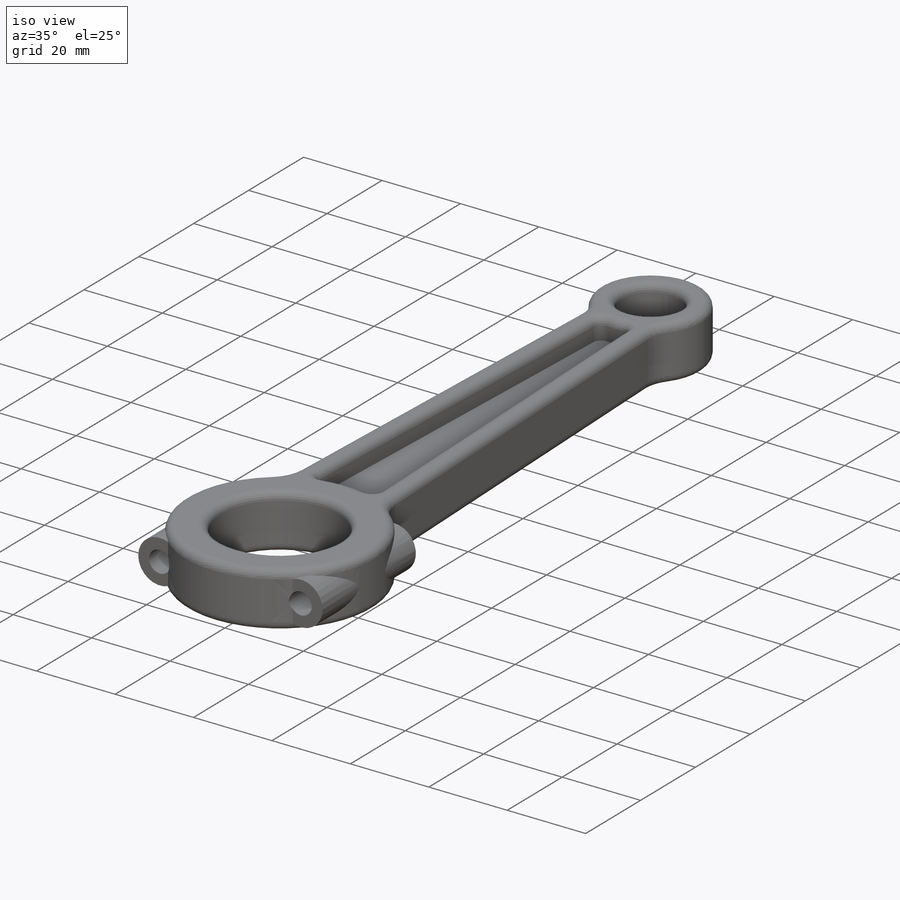
[diagram: iso view]
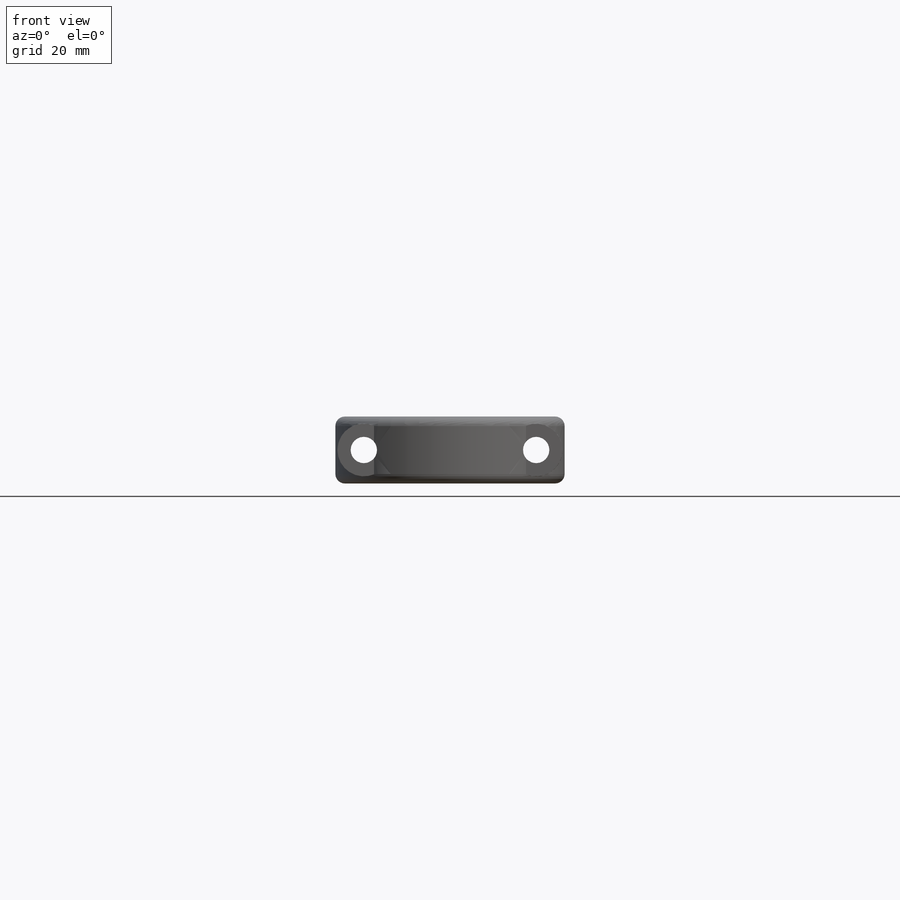
[diagram: front view]
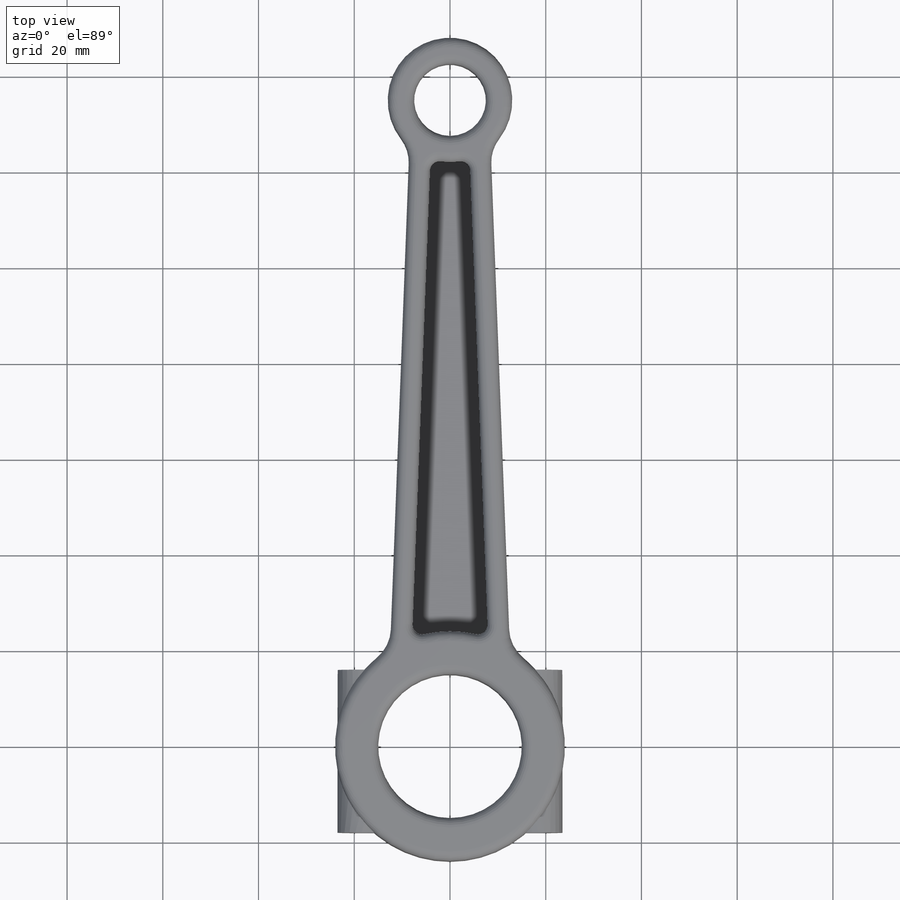
[diagram: top view]
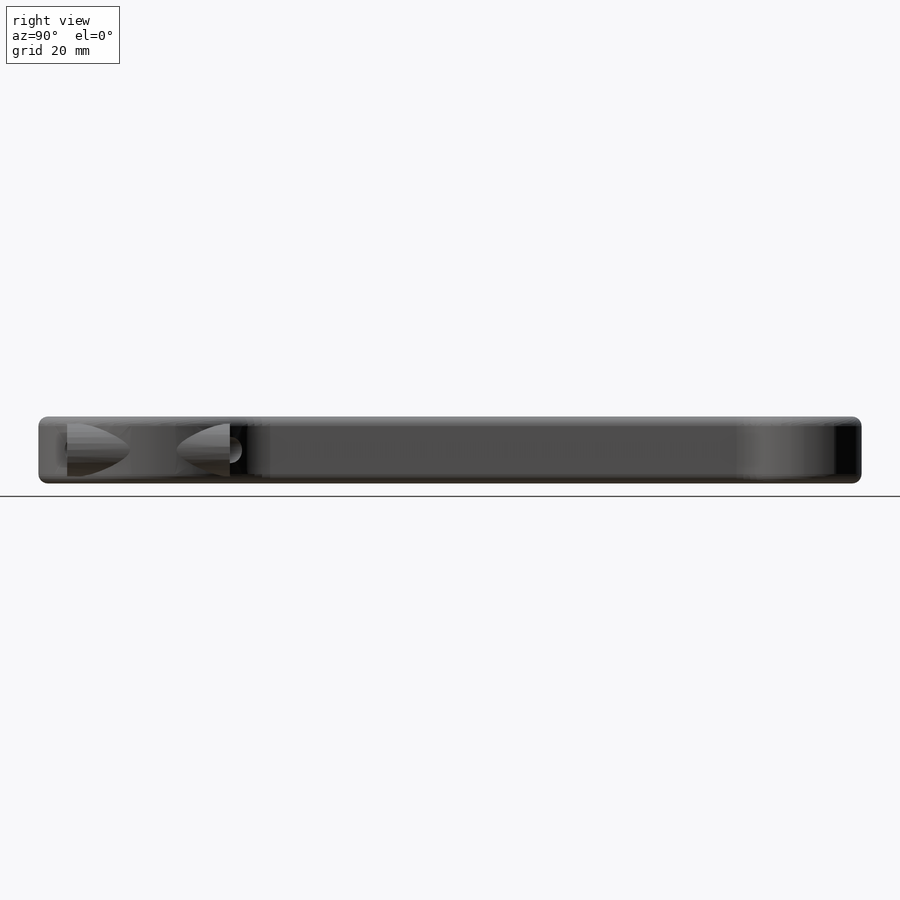
[diagram: right view]
SOLIDWORKS PART (.sldprt)
format: sldprt  version: not decoded by parser v0  size: 438,784 bytes
history: native  units: mm
features: sketch x5, plane x3, extrude x3, cut_extrude x2, material x1, fillet x1 (+8 scaffold rows collapsed)
feature tree (23):
  scaffold x8  (default folders/planes/origin — collapsed)
  material  "Material <sin especificar>"
  plane  "Alzado"
  plane  "Planta"
  plane  "Vista lateral"
  sketch  "Croquis1"  dims[D2=24.0mm D4=13.0mm D6=8.0mm D7=2.0mm D9=15.0mm D1=25.0mm D3=17.0mm D5=135.0mm D8=4.5mm]
  extrude  "Saliente-Extruir2"  Depth=14mm
  sketch  "Croquis2"
  extrude  "Saliente-Extruir3"  Depth=3mm
  sketch  "Croquis3"  dims[D2=11.0mm D1=36.0mm]
  extrude  "Saliente-Extruir6"  Depth=18mm
  sketch  "Croquis6"  dims[D2=5.5mm D1=36.0mm]
  cut_extrude  "Cortar-Extruir4"  Depth=48mm
  sketch  "Croquis7"  dims[D1=30.0mm]
  cut_extrude  "Cortar-Extruir5"  [1 undecoded]
  fillet  "Redondeo1"  Radius=2mm
decode coverage: 9 of 11 modeling features carry decoded parameters
note: 1 parameter value undecoded
note: suppression state not decoded; provenance and decode notes live in map.json
